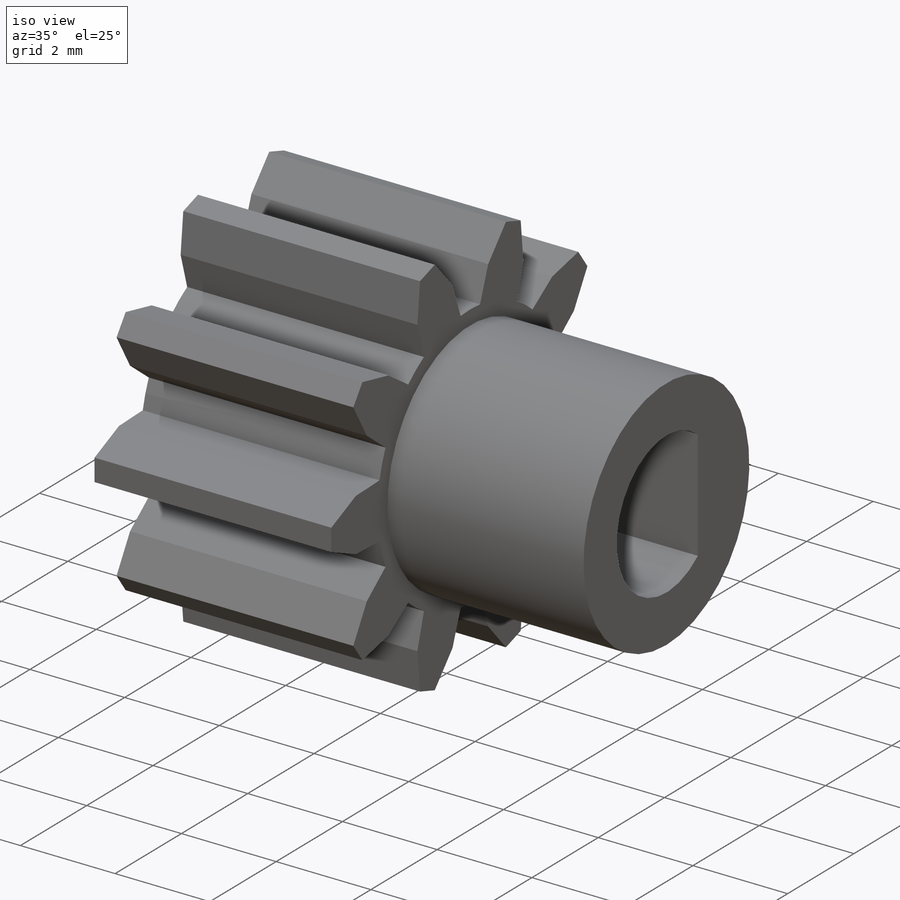
[diagram: iso view]
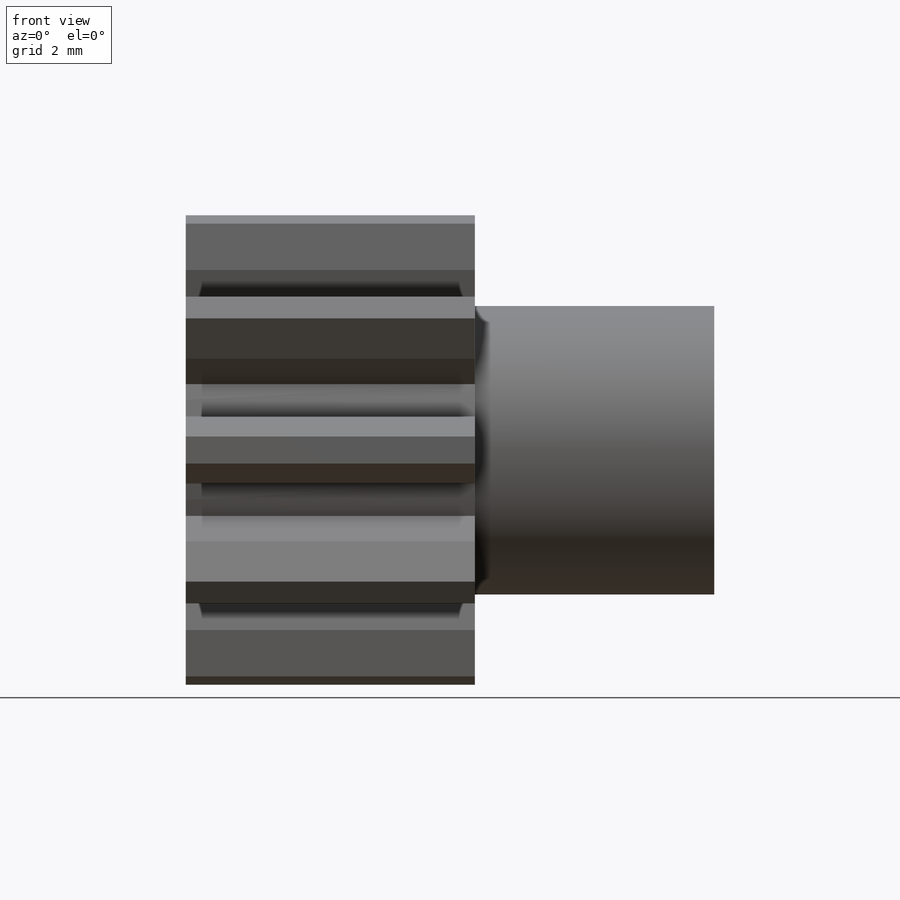
[diagram: front view]
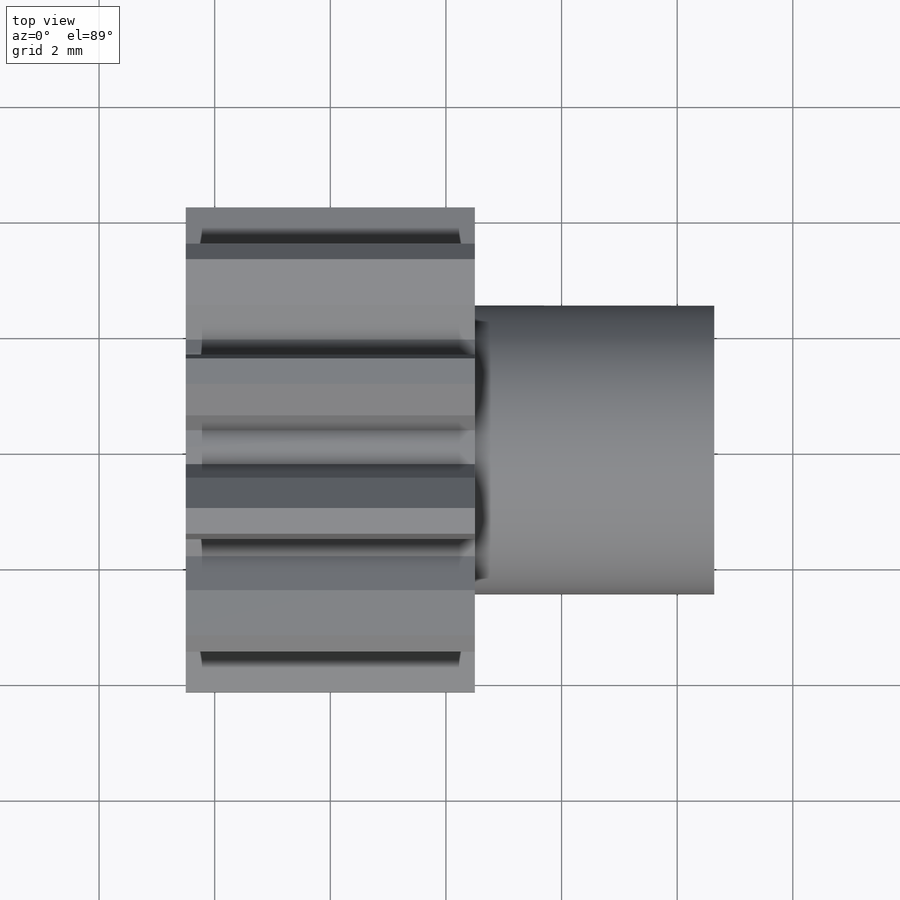
[diagram: top view]
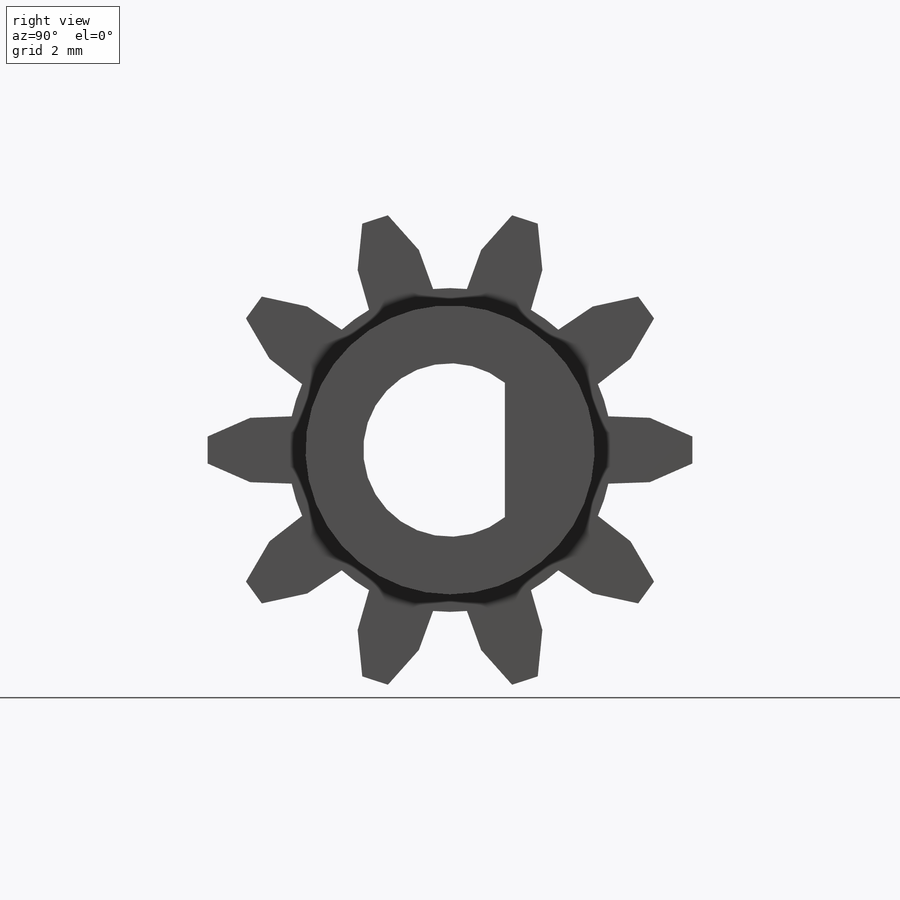
[diagram: right view]
SOLIDWORKS PART (.sldprt)
format: sldprt  version: not decoded by parser v0  size: 611,840 bytes
history: native  units: mm
features: sketch x25, cut_extrude x21, plane x4, revolve x2, material x1, extrude x1 (+8 scaffold rows collapsed)
feature tree (62):
  scaffold x8  (default folders/planes/origin — collapsed)
  material  "Matériau <non spécifié>"
  plane  "Plan de face"
  plane  "Plan de dessus"
  plane  "Plan de droite"
  plane  "Plan1"
  sketch  "Esquisse1"
  revolve  "Révolution1"  Angle=360deg
  sketch  "Esquisse2"
  cut_extrude  "Enlèv. mat.-Extru.1"  Depth=5mm
  sketch  "Esquisse3"
  cut_extrude  "Enlèv. mat.-Extru.2"  Depth=5mm
  sketch  "Esquisse4"
  cut_extrude  "Enlèv. mat.-Extru.3"  Depth=5mm
  sketch  "Esquisse5"
  cut_extrude  "Enlèv. mat.-Extru.4"  Depth=5mm
  sketch  "Esquisse6"
  cut_extrude  "Enlèv. mat.-Extru.5"  Depth=5mm
  sketch  "Esquisse7"
  cut_extrude  "Enlèv. mat.-Extru.6"  Depth=5mm
  sketch  "Esquisse8"
  cut_extrude  "Enlèv. mat.-Extru.7"  Depth=5mm
  sketch  "Esquisse9"
  cut_extrude  "Enlèv. mat.-Extru.8"  Depth=5mm
  sketch  "Esquisse10"
  cut_extrude  "Enlèv. mat.-Extru.9"  Depth=5mm
  sketch  "Esquisse11"
  cut_extrude  "Enlèv. mat.-Extru.10"  Depth=5mm
  sketch  "Esquisse12"
  cut_extrude  "Enlèv. mat.-Extru.11"  Depth=5mm
  sketch  "Esquisse13"
  cut_extrude  "Enlèv. mat.-Extru.12"  Depth=5mm
  sketch  "Esquisse14"
  cut_extrude  "Enlèv. mat.-Extru.13"  Depth=5mm
  sketch  "Esquisse15"
  cut_extrude  "Enlèv. mat.-Extru.14"  Depth=5mm
  sketch  "Esquisse16"
  cut_extrude  "Enlèv. mat.-Extru.15"  Depth=5mm
  sketch  "Esquisse17"
  cut_extrude  "Enlèv. mat.-Extru.16"  Depth=5mm
  sketch  "Esquisse18"
  cut_extrude  "Enlèv. mat.-Extru.17"  Depth=5mm
  sketch  "Esquisse19"
  cut_extrude  "Enlèv. mat.-Extru.18"  Depth=5mm
  sketch  "Esquisse20"
  cut_extrude  "Enlèv. mat.-Extru.19"  Depth=5mm
  sketch  "Esquisse21"
  cut_extrude  "Enlèv. mat.-Extru.20"  Depth=5mm
  sketch  "Esquisse22"  dims[D1=4.14mm D2=2.5mm]
  revolve  "Révolution2"  Angle=360deg
  sketch  "Esquisse28"  dims[D1=~7.230878mm]
  sketch  "Esquisse29"  dims[D1=3.0mm]
  cut_extrude  "Enlèv. mat.-Extru.21"  Depth=10mm
  sketch  "Esquisse31"  dims[D1=2.45mm]
  extrude  "Boss.-Extru.1"  Depth=9.14mm
decode coverage: 28 of 49 modeling features carry decoded parameters
note: ~ marks probable driven/reference dimensions
note: suppression state not decoded; provenance and decode notes live in map.json
